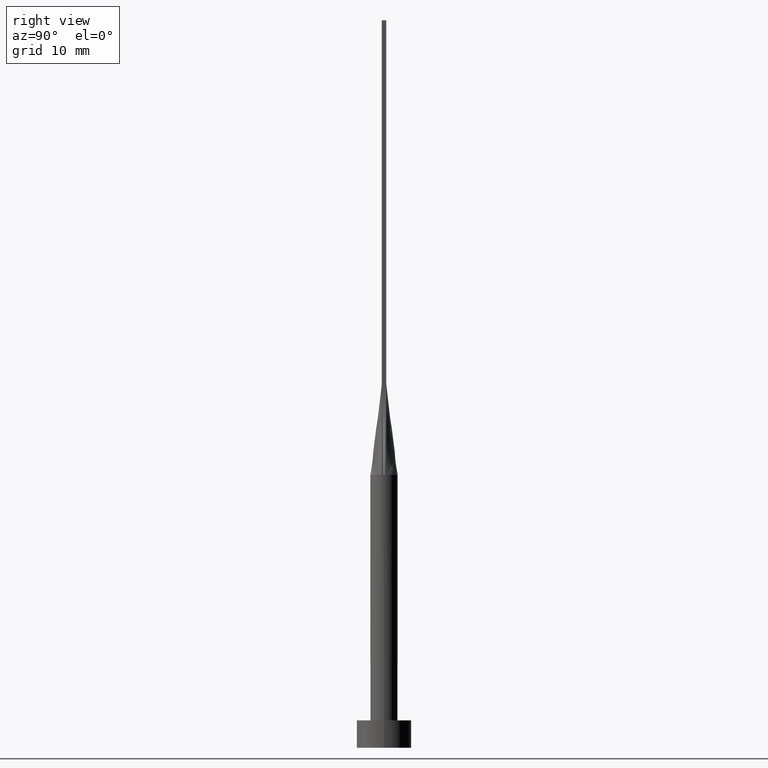
[diagram: clean part render]
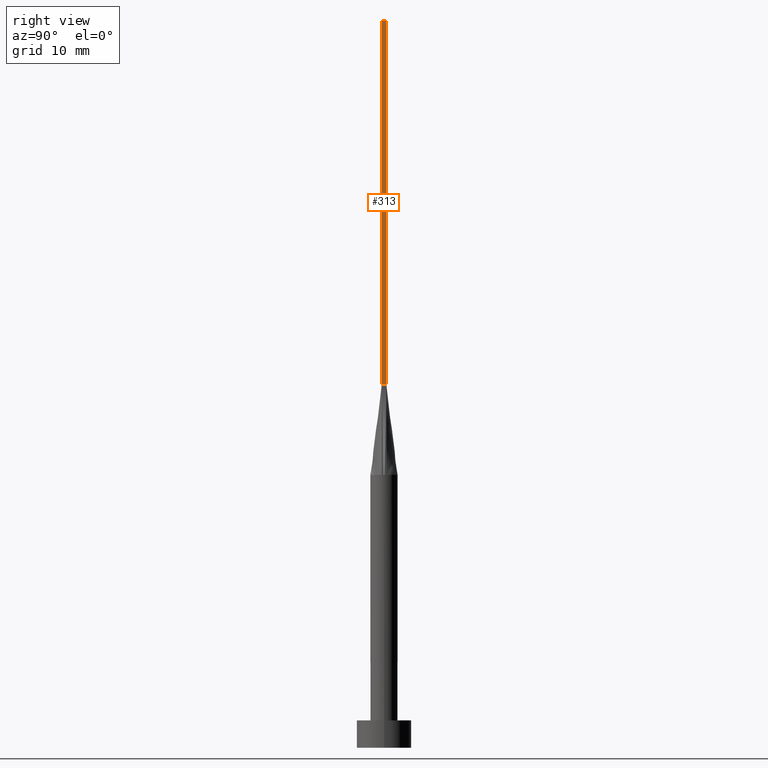
[diagram: same view with one face highlighted and labeled with its STEP entity id]
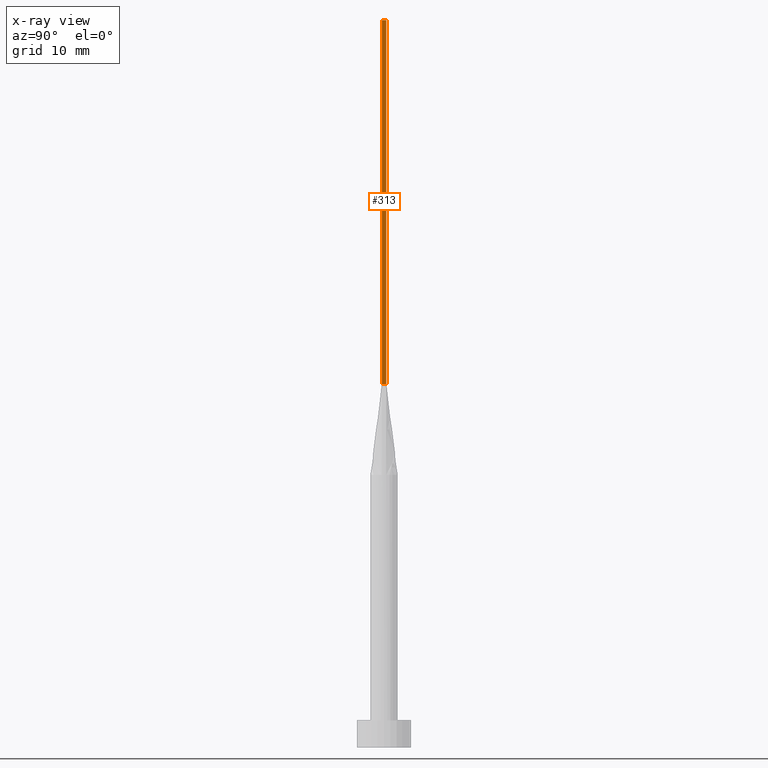
[diagram: x-ray of the same camera — body ghosted, the highlighted face saturated]
A machine part, right view. The second image highlights one B-rep face of the part: STEP entity #313.
The next image is the same camera in x-ray: the body ghosted, the highlighted face saturated — about 0% of this face is hidden behind the body in this view.
In plain terms, the highlighted planar face has unit normal (-1, 0, 0).
Its self-contained STEP definition (entity closure, byte-faithful):
#87 = EDGE_CURVE ( 'NONE', #376, #469, #371, .T. ) ;
#102 = VERTEX_POINT ( 'NONE', #488 ) ;
#108 = EDGE_LOOP ( 'NONE', ( #562, #508, #571, #290 ) ) ;
#116 = FACE_OUTER_BOUND ( 'NONE', #108, .T. ) ;
#123 = CARTESIAN_POINT ( 'NONE',  ( 1.399999999999999911, 0.2500000000000002220, 80.00000000000000000 ) ) ;
#163 = EDGE_CURVE ( 'NONE', #258, #469, #392, .T. ) ;
#184 = VECTOR ( 'NONE', #257, 1000.000000000000000 ) ;
#204 = EDGE_CURVE ( 'NONE', #102, #376, #347, .T. ) ;
#223 = DIRECTION ( 'NONE',  ( -1.000000000000000000, 0.000000000000000000, 0.000000000000000000 ) ) ;
#230 = CARTESIAN_POINT ( 'NONE',  ( 1.399999999999999911, -0.2499999999999997780, 40.00000000000000000 ) ) ;
#257 = DIRECTION ( 'NONE',  ( -0.000000000000000000, -0.000000000000000000, -1.000000000000000000 ) ) ;
#258 = VERTEX_POINT ( 'NONE', #123 ) ;
#265 = CARTESIAN_POINT ( 'NONE',  ( 1.399999999999999911, -0.2499999999999997780, 80.00000000000000000 ) ) ;
#267 = PLANE ( 'NONE',  #479 ) ;
#290 = ORIENTED_EDGE ( 'NONE', *, *, #204, .T. ) ;
#312 = CARTESIAN_POINT ( 'NONE',  ( 1.399999999999999911, 0.2500000000000002220, 40.00000000000000000 ) ) ;
#313 = ADVANCED_FACE ( 'NONE', ( #116 ), #267, .F. ) ;
#322 = DIRECTION ( 'NONE',  ( -0.000000000000000000, 1.000000000000000000, -0.000000000000000000 ) ) ;
#338 = LINE ( 'NONE', #265, #454 ) ;
#347 = LINE ( 'NONE', #353, #184 ) ;
#353 = CARTESIAN_POINT ( 'NONE',  ( 1.399999999999999911, -0.2499999999999997780, 80.00000000000000000 ) ) ;
#371 = LINE ( 'NONE', #578, #506 ) ;
#376 = VERTEX_POINT ( 'NONE', #230 ) ;
#392 = LINE ( 'NONE', #564, #546 ) ;
#398 = DIRECTION ( 'NONE',  ( 0.000000000000000000, 0.000000000000000000, 1.000000000000000000 ) ) ;
#423 = DIRECTION ( 'NONE',  ( 0.000000000000000000, 1.000000000000000000, 0.000000000000000000 ) ) ;
#439 = CARTESIAN_POINT ( 'NONE',  ( 1.399999999999999911, -0.2499999999999997780, 80.00000000000000000 ) ) ;
#454 = VECTOR ( 'NONE', #423, 1000.000000000000000 ) ;
#469 = VERTEX_POINT ( 'NONE', #312 ) ;
#479 = AXIS2_PLACEMENT_3D ( 'NONE', #439, #223, #398 ) ;
#488 = CARTESIAN_POINT ( 'NONE',  ( 1.399999999999999911, -0.2499999999999997780, 80.00000000000000000 ) ) ;
#506 = VECTOR ( 'NONE', #322, 1000.000000000000000 ) ;
#508 = ORIENTED_EDGE ( 'NONE', *, *, #163, .F. ) ;
#522 = DIRECTION ( 'NONE',  ( -0.000000000000000000, -0.000000000000000000, -1.000000000000000000 ) ) ;
#546 = VECTOR ( 'NONE', #522, 1000.000000000000000 ) ;
#555 = EDGE_CURVE ( 'NONE', #102, #258, #338, .T. ) ;
#562 = ORIENTED_EDGE ( 'NONE', *, *, #87, .T. ) ;
#564 = CARTESIAN_POINT ( 'NONE',  ( 1.399999999999999911, 0.2500000000000002220, 80.00000000000000000 ) ) ;
#571 = ORIENTED_EDGE ( 'NONE', *, *, #555, .F. ) ;
#578 = CARTESIAN_POINT ( 'NONE',  ( 1.399999999999999911, 0.2500000000000002220, 40.00000000000000000 ) ) ;